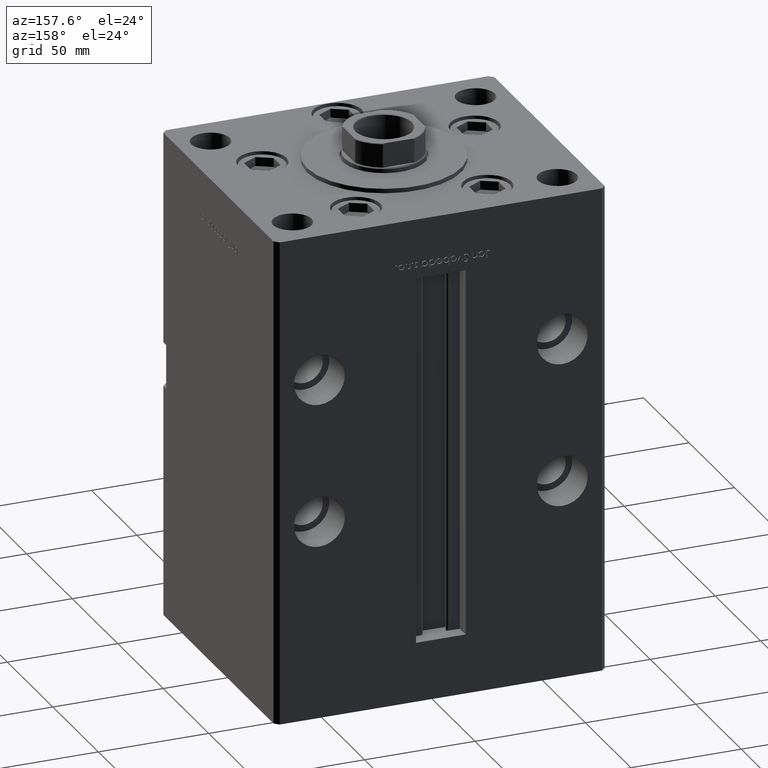
[diagram: clean part render]
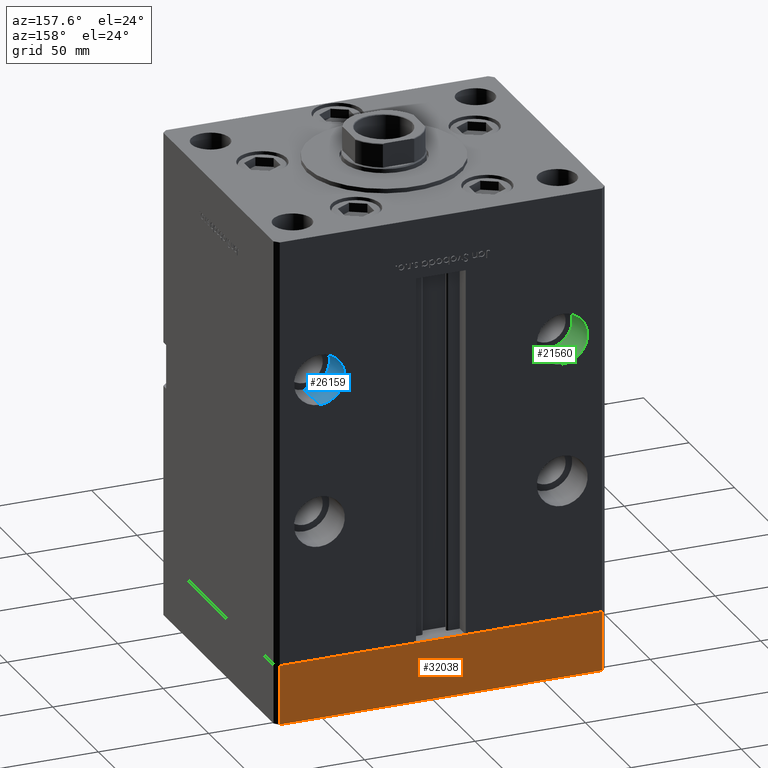
[diagram: same view with three faces highlighted in distinct colors, each labeled with its STEP entity id]
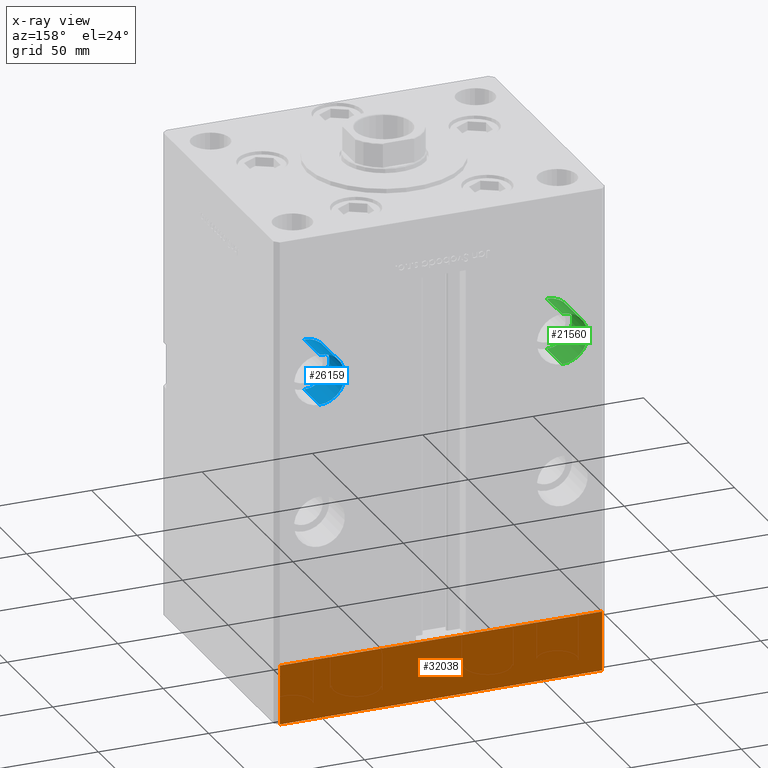
[diagram: x-ray of the same camera — body ghosted, the three highlighted faces saturated]
A machine part, auxiliary view with three faces highlighted in distinct colors.
The next image is the same camera in x-ray (body ghosted, the three faces saturated) — at least one of them is partly hidden behind the body in this view.
Their STEP definitions:

[orange] entity #32038 — the highlighted planar face has unit normal (-0, 1, 0).
#3630 = DIRECTION ( 'NONE',  ( -1.901066822988282936E-16, 1.000000000000000000, 0.000000000000000000 ) ) ;
#3868 = ORIENTED_EDGE ( 'NONE', *, *, #37851, .F. ) ;
#4752 = CARTESIAN_POINT ( 'NONE',  ( -73.00000000000001421, 62.49999999999998579, -27.00000000000000000 ) ) ;
#9816 = EDGE_CURVE ( 'NONE', #35624, #39716, #33920, .T. ) ;
#10279 = VECTOR ( 'NONE', #23657, 1000.000000000000000 ) ;
#10907 = VECTOR ( 'NONE', #16795, 1000.000000000000000 ) ;
#11238 = CARTESIAN_POINT ( 'NONE',  ( 72.99999999999992895, 62.50000000000001421, -27.00000000000000000 ) ) ;
#11595 = CARTESIAN_POINT ( 'NONE',  ( 72.99999999999992895, 62.50000000000001421, -27.00000000000000000 ) ) ;
#11986 = LINE ( 'NONE', #4752, #10907 ) ;
#13707 = EDGE_CURVE ( 'NONE', #41822, #25042, #47984, .T. ) ;
#14646 = EDGE_CURVE ( 'NONE', #25042, #39716, #11986, .T. ) ;
#15420 = DIRECTION ( 'NONE',  ( -1.000000000000000000, -1.901066822988282936E-16, 0.000000000000000000 ) ) ;
#16634 = CARTESIAN_POINT ( 'NONE',  ( -73.00000000000001421, 62.49999999999998579, 0.000000000000000000 ) ) ;
#16778 = CARTESIAN_POINT ( 'NONE',  ( 72.99999999999992895, 62.50000000000001421, 0.000000000000000000 ) ) ;
#16795 = DIRECTION ( 'NONE',  ( 0.000000000000000000, 0.000000000000000000, 1.000000000000000000 ) ) ;
#20013 = CARTESIAN_POINT ( 'NONE',  ( 72.99999999999992895, 62.50000000000001421, -27.00000000000000000 ) ) ;
#23657 = DIRECTION ( 'NONE',  ( 0.000000000000000000, 0.000000000000000000, 1.000000000000000000 ) ) ;
#23721 = FACE_OUTER_BOUND ( 'NONE', #43390, .T. ) ;
#24514 = VECTOR ( 'NONE', #37426, 1000.000000000000000 ) ;
#25042 = VERTEX_POINT ( 'NONE', #31721 ) ;
#26591 = CARTESIAN_POINT ( 'NONE',  ( 72.99999999999992895, 62.50000000000001421, 0.000000000000000000 ) ) ;
#27316 = DIRECTION ( 'NONE',  ( -1.000000000000000000, -1.901066822988282689E-16, 0.000000000000000000 ) ) ;
#30602 = VECTOR ( 'NONE', #27316, 1000.000000000000000 ) ;
#31721 = CARTESIAN_POINT ( 'NONE',  ( -73.00000000000001421, 62.49999999999998579, -27.00000000000000000 ) ) ;
#32030 = CARTESIAN_POINT ( 'NONE',  ( 72.99999999999992895, 62.50000000000001421, -27.00000000000000000 ) ) ;
#32038 = ADVANCED_FACE ( 'NONE', ( #23721 ), #40616, .T. ) ;
#32926 = ORIENTED_EDGE ( 'NONE', *, *, #13707, .T. ) ;
#33920 = LINE ( 'NONE', #16778, #24514 ) ;
#35624 = VERTEX_POINT ( 'NONE', #26591 ) ;
#35729 = LINE ( 'NONE', #11595, #10279 ) ;
#37426 = DIRECTION ( 'NONE',  ( -1.000000000000000000, -1.901066822988282689E-16, 0.000000000000000000 ) ) ;
#37544 = ORIENTED_EDGE ( 'NONE', *, *, #9816, .F. ) ;
#37851 = EDGE_CURVE ( 'NONE', #41822, #35624, #35729, .T. ) ;
#39716 = VERTEX_POINT ( 'NONE', #16634 ) ;
#40616 = PLANE ( 'NONE',  #46088 ) ;
#41619 = ORIENTED_EDGE ( 'NONE', *, *, #14646, .T. ) ;
#41822 = VERTEX_POINT ( 'NONE', #20013 ) ;
#43390 = EDGE_LOOP ( 'NONE', ( #37544, #3868, #32926, #41619 ) ) ;
#46088 = AXIS2_PLACEMENT_3D ( 'NONE', #32030, #3630, #15420 ) ;
#47984 = LINE ( 'NONE', #11238, #30602 ) ;

[blue] entity #26159 — the highlighted cylindrical surface (edge-blend (fillet) strip) has radius 11.5 mm, axis along (0, 1, 0).
#152 = CARTESIAN_POINT ( 'NONE',  ( 55.00000000000000000, 45.50000000000000000, 139.5000000000000000 ) ) ;
#763 = EDGE_CURVE ( 'NONE', #21824, #37933, #9810, .T. ) ;
#2489 = CARTESIAN_POINT ( 'NONE',  ( 55.00000000000000000, 45.50000000000000000, 116.5000000000000000 ) ) ;
#7397 = DIRECTION ( 'NONE',  ( -0.000000000000000000, 1.000000000000000000, -0.000000000000000000 ) ) ;
#7910 = EDGE_CURVE ( 'NONE', #31047, #30982, #26141, .T. ) ;
#9810 = CIRCLE ( 'NONE', #46649, 11.50000000000001066 ) ;
#10519 = LINE ( 'NONE', #2489, #38355 ) ;
#13606 = DIRECTION ( 'NONE',  ( 0.000000000000000000, 0.000000000000000000, 1.000000000000000000 ) ) ;
#13620 = CARTESIAN_POINT ( 'NONE',  ( 55.00000000000000000, 45.50000000000000000, 139.5000000000000000 ) ) ;
#14507 = CYLINDRICAL_SURFACE ( 'NONE', #52897, 11.50000000000001066 ) ;
#15859 = AXIS2_PLACEMENT_3D ( 'NONE', #42001, #46298, #29923 ) ;
#18250 = CARTESIAN_POINT ( 'NONE',  ( 55.00000000000000000, 45.50000000000000000, 128.0000000000000000 ) ) ;
#18698 = ORIENTED_EDGE ( 'NONE', *, *, #24670, .F. ) ;
#21824 = VERTEX_POINT ( 'NONE', #49051 ) ;
#23080 = DIRECTION ( 'NONE',  ( 0.000000000000000000, 0.000000000000000000, 1.000000000000000000 ) ) ;
#24670 = EDGE_CURVE ( 'NONE', #30982, #37933, #48154, .T. ) ;
#26141 = CIRCLE ( 'NONE', #15859, 11.50000000000001066 ) ;
#26159 = ADVANCED_FACE ( 'NONE', ( #38657 ), #14507, .F. ) ;
#27251 = CARTESIAN_POINT ( 'NONE',  ( 55.00000000000000000, 45.50000000000000000, 116.5000000000000000 ) ) ;
#27942 = DIRECTION ( 'NONE',  ( -0.000000000000000000, 1.000000000000000000, -0.000000000000000000 ) ) ;
#29923 = DIRECTION ( 'NONE',  ( 0.000000000000000000, 0.000000000000000000, 1.000000000000000000 ) ) ;
#30520 = ORIENTED_EDGE ( 'NONE', *, *, #31304, .T. ) ;
#30982 = VERTEX_POINT ( 'NONE', #13620 ) ;
#31047 = VERTEX_POINT ( 'NONE', #27251 ) ;
#31304 = EDGE_CURVE ( 'NONE', #31047, #21824, #10519, .T. ) ;
#34762 = CARTESIAN_POINT ( 'NONE',  ( 55.00000000000000000, 62.50000000000000000, 128.0000000000000000 ) ) ;
#37933 = VERTEX_POINT ( 'NONE', #49871 ) ;
#38355 = VECTOR ( 'NONE', #27942, 1000.000000000000000 ) ;
#38543 = DIRECTION ( 'NONE',  ( 0.000000000000000000, 1.000000000000000000, 0.000000000000000000 ) ) ;
#38657 = FACE_OUTER_BOUND ( 'NONE', #48295, .T. ) ;
#39170 = DIRECTION ( 'NONE',  ( -0.000000000000000000, 1.000000000000000000, -0.000000000000000000 ) ) ;
#42001 = CARTESIAN_POINT ( 'NONE',  ( 55.00000000000000000, 45.50000000000000000, 128.0000000000000000 ) ) ;
#46298 = DIRECTION ( 'NONE',  ( 0.000000000000000000, 1.000000000000000000, 0.000000000000000000 ) ) ;
#46649 = AXIS2_PLACEMENT_3D ( 'NONE', #34762, #38543, #13606 ) ;
#47425 = ORIENTED_EDGE ( 'NONE', *, *, #7910, .F. ) ;
#48154 = LINE ( 'NONE', #152, #48826 ) ;
#48295 = EDGE_LOOP ( 'NONE', ( #47425, #30520, #51441, #18698 ) ) ;
#48826 = VECTOR ( 'NONE', #7397, 1000.000000000000000 ) ;
#49051 = CARTESIAN_POINT ( 'NONE',  ( 55.00000000000000000, 62.50000000000000000, 116.5000000000000000 ) ) ;
#49871 = CARTESIAN_POINT ( 'NONE',  ( 55.00000000000000000, 62.50000000000000000, 139.5000000000000000 ) ) ;
#51441 = ORIENTED_EDGE ( 'NONE', *, *, #763, .T. ) ;
#52897 = AXIS2_PLACEMENT_3D ( 'NONE', #18250, #39170, #23080 ) ;

[green] entity #21560 — the highlighted cylindrical surface (edge-blend (fillet) strip) has radius 11.5 mm, axis along (0, 1, 0).
#3179 = DIRECTION ( 'NONE',  ( 0.000000000000000000, 0.000000000000000000, -1.000000000000000000 ) ) ;
#4601 = EDGE_LOOP ( 'NONE', ( #39367, #33090, #50919, #45730 ) ) ;
#7464 = DIRECTION ( 'NONE',  ( 0.000000000000000000, 1.000000000000000000, -0.000000000000000000 ) ) ;
#9370 = CARTESIAN_POINT ( 'NONE',  ( -55.00000000000000000, 45.50000000000000000, 139.5000000000000000 ) ) ;
#9563 = CARTESIAN_POINT ( 'NONE',  ( -55.00000000000000000, 62.50000000000000000, 128.0000000000000000 ) ) ;
#10141 = CIRCLE ( 'NONE', #52975, 11.50000000000001066 ) ;
#11011 = AXIS2_PLACEMENT_3D ( 'NONE', #39894, #7464, #3179 ) ;
#13182 = CARTESIAN_POINT ( 'NONE',  ( -55.00000000000000000, 62.50000000000000000, 139.5000000000000000 ) ) ;
#13572 = CIRCLE ( 'NONE', #11011, 11.50000000000001066 ) ;
#14621 = EDGE_CURVE ( 'NONE', #40303, #40721, #17055, .T. ) ;
#15592 = CARTESIAN_POINT ( 'NONE',  ( -55.00000000000000000, 45.50000000000000000, 128.0000000000000000 ) ) ;
#16173 = VERTEX_POINT ( 'NONE', #9370 ) ;
#17055 = LINE ( 'NONE', #45498, #44341 ) ;
#17979 = LINE ( 'NONE', #43980, #44711 ) ;
#21560 = ADVANCED_FACE ( 'NONE', ( #44018 ), #23634, .F. ) ;
#23634 = CYLINDRICAL_SURFACE ( 'NONE', #35952, 11.50000000000001066 ) ;
#24052 = DIRECTION ( 'NONE',  ( -0.000000000000000000, 1.000000000000000000, -0.000000000000000000 ) ) ;
#25909 = DIRECTION ( 'NONE',  ( 0.000000000000000000, 1.000000000000000000, -0.000000000000000000 ) ) ;
#28323 = VERTEX_POINT ( 'NONE', #13182 ) ;
#28453 = EDGE_CURVE ( 'NONE', #40303, #16173, #13572, .T. ) ;
#28772 = EDGE_CURVE ( 'NONE', #40721, #28323, #10141, .T. ) ;
#31944 = DIRECTION ( 'NONE',  ( -0.000000000000000000, 1.000000000000000000, -0.000000000000000000 ) ) ;
#33090 = ORIENTED_EDGE ( 'NONE', *, *, #14621, .T. ) ;
#35272 = DIRECTION ( 'NONE',  ( 0.000000000000000000, 0.000000000000000000, -1.000000000000000000 ) ) ;
#35952 = AXIS2_PLACEMENT_3D ( 'NONE', #15592, #31944, #48316 ) ;
#38084 = CARTESIAN_POINT ( 'NONE',  ( -55.00000000000000000, 62.50000000000000000, 116.4999999999999858 ) ) ;
#39367 = ORIENTED_EDGE ( 'NONE', *, *, #28453, .F. ) ;
#39413 = DIRECTION ( 'NONE',  ( -0.000000000000000000, 1.000000000000000000, -0.000000000000000000 ) ) ;
#39894 = CARTESIAN_POINT ( 'NONE',  ( -55.00000000000000000, 45.50000000000000000, 128.0000000000000000 ) ) ;
#40303 = VERTEX_POINT ( 'NONE', #49947 ) ;
#40721 = VERTEX_POINT ( 'NONE', #38084 ) ;
#42748 = EDGE_CURVE ( 'NONE', #16173, #28323, #17979, .T. ) ;
#43980 = CARTESIAN_POINT ( 'NONE',  ( -55.00000000000000000, 45.50000000000000000, 139.5000000000000000 ) ) ;
#44018 = FACE_OUTER_BOUND ( 'NONE', #4601, .T. ) ;
#44341 = VECTOR ( 'NONE', #24052, 1000.000000000000000 ) ;
#44711 = VECTOR ( 'NONE', #39413, 1000.000000000000000 ) ;
#45498 = CARTESIAN_POINT ( 'NONE',  ( -55.00000000000000000, 45.50000000000000000, 116.4999999999999858 ) ) ;
#45730 = ORIENTED_EDGE ( 'NONE', *, *, #42748, .F. ) ;
#48316 = DIRECTION ( 'NONE',  ( 0.000000000000000000, 0.000000000000000000, 1.000000000000000000 ) ) ;
#49947 = CARTESIAN_POINT ( 'NONE',  ( -55.00000000000000000, 45.50000000000000000, 116.4999999999999858 ) ) ;
#50919 = ORIENTED_EDGE ( 'NONE', *, *, #28772, .T. ) ;
#52975 = AXIS2_PLACEMENT_3D ( 'NONE', #9563, #25909, #35272 ) ;